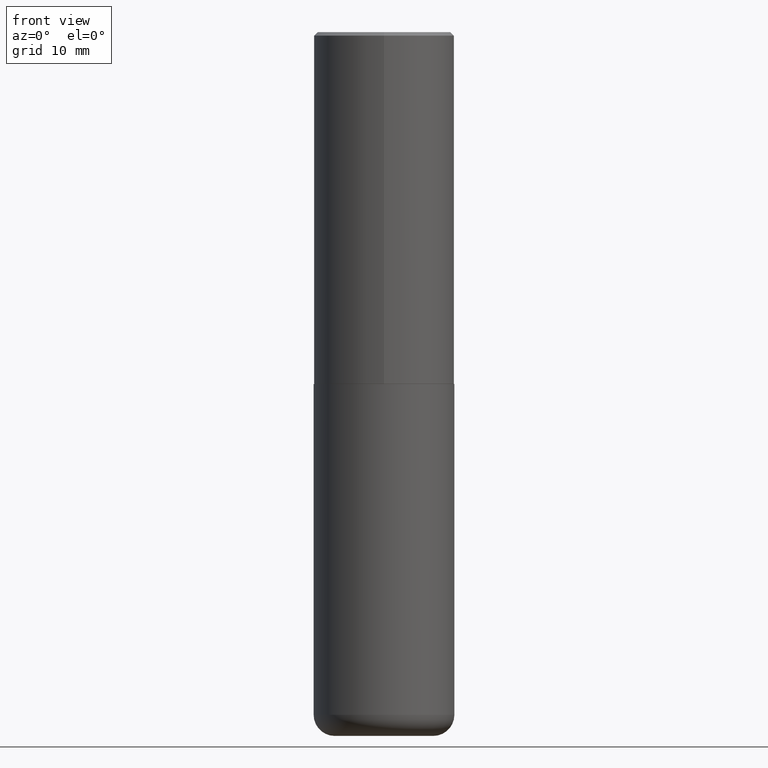
[diagram: clean part render]
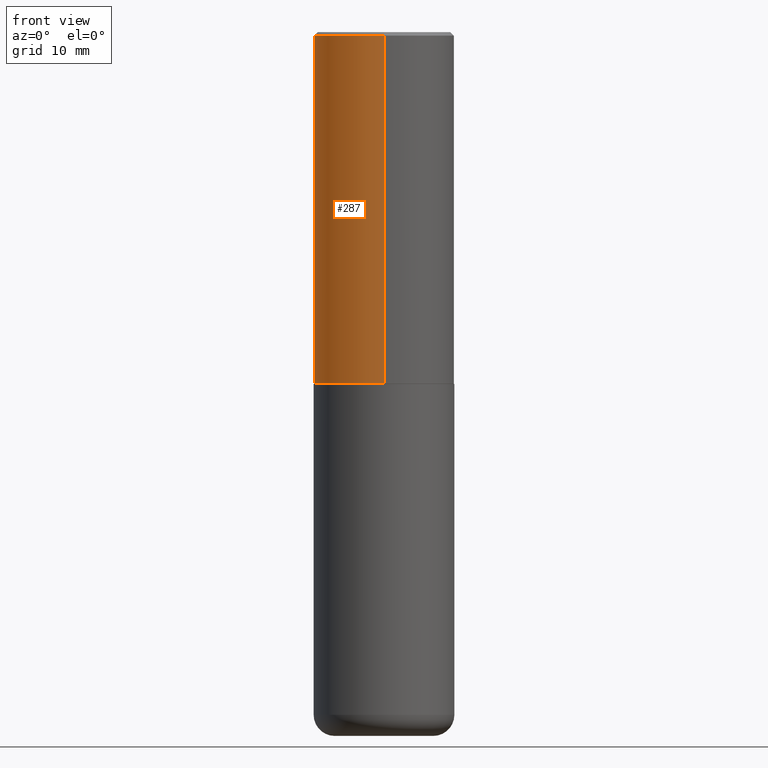
[diagram: same view with one face highlighted and labeled with its STEP entity id]
A machine part, front view. The second image highlights one B-rep face of the part: STEP entity #287.
In plain terms, the highlighted cylindrical surface (partial cylindrical patch) has radius 10 mm, axis along (-0, 0, 1).
Its self-contained STEP definition (entity closure, byte-faithful):
#7 = EDGE_CURVE ( 'NONE', #77, #97, #199, .T. ) ;
#15 = CARTESIAN_POINT ( 'NONE',  ( -2.700978061722651647E-15, -0.3937000000000001609, -0.01999999999999870978 ) ) ;
#29 = CARTESIAN_POINT ( 'NONE',  ( 4.816247846760815671E-29, -6.862632887772413316E-15, -1.967500000000000027 ) ) ;
#32 = CARTESIAN_POINT ( 'NONE',  ( 0.000000000000000000, 0.000000000000000000, 0.000000000000000000 ) ) ;
#45 = DIRECTION ( 'NONE',  ( -2.447902336346030930E-29, 3.487996385144809360E-15, 1.000000000000000000 ) ) ;
#46 = CARTESIAN_POINT ( 'NONE',  ( 4.895804672692082949E-31, -6.975992770289649092E-17, -0.02000000000000008715 ) ) ;
#54 = VECTOR ( 'NONE', #45, 39.37007874015748143 ) ;
#63 = EDGE_CURVE ( 'NONE', #103, #388, #198, .T. ) ;
#70 = CARTESIAN_POINT ( 'NONE',  ( 2.797406750687540424E-15, 0.3936999999999934441, -1.967500000000001359 ) ) ;
#77 = VERTEX_POINT ( 'NONE', #176 ) ;
#95 = VECTOR ( 'NONE', #98, 39.37007874015748143 ) ;
#97 = VERTEX_POINT ( 'NONE', #15 ) ;
#98 = DIRECTION ( 'NONE',  ( -2.447902336346030930E-29, 3.487996385144809360E-15, 1.000000000000000000 ) ) ;
#103 = VERTEX_POINT ( 'NONE', #70 ) ;
#135 = ORIENTED_EDGE ( 'NONE', *, *, #235, .T. ) ;
#152 = FACE_OUTER_BOUND ( 'NONE', #321, .T. ) ;
#162 = ORIENTED_EDGE ( 'NONE', *, *, #7, .T. ) ;
#165 = CIRCLE ( 'NONE', #351, 0.3937000000000001054 ) ;
#170 = ORIENTED_EDGE ( 'NONE', *, *, #398, .F. ) ;
#173 = CARTESIAN_POINT ( 'NONE',  ( 2.749192406205084005E-15, 0.3937000000000000499, -0.02000000000000146105 ) ) ;
#176 = CARTESIAN_POINT ( 'NONE',  ( -2.749192406205036674E-15, -0.3937000000000070998, -1.967499999999998694 ) ) ;
#191 = DIRECTION ( 'NONE',  ( -2.447902336346030930E-29, 3.487996385144809755E-15, 1.000000000000000000 ) ) ;
#198 = LINE ( 'NONE', #258, #95 ) ;
#199 = LINE ( 'NONE', #332, #54 ) ;
#235 = EDGE_CURVE ( 'NONE', #103, #77, #333, .T. ) ;
#251 = DIRECTION ( 'NONE',  ( -2.447902336346030930E-29, 3.487996385144809755E-15, 1.000000000000000000 ) ) ;
#258 = CARTESIAN_POINT ( 'NONE',  ( 2.797406750687515575E-15, 0.3937000000000002164, -1.373224176831512262E-15 ) ) ;
#266 = DIRECTION ( 'NONE',  ( -2.447902336346030930E-29, 3.487996385144809755E-15, 1.000000000000000000 ) ) ;
#283 = CYLINDRICAL_SURFACE ( 'NONE', #387, 0.3937000000000002164 ) ;
#287 = ADVANCED_FACE ( 'NONE', ( #152 ), #283, .T. ) ;
#288 = DIRECTION ( 'NONE',  ( -6.982962677686265922E-15, -1.000000000000000000, 3.487996385144809360E-15 ) ) ;
#299 = AXIS2_PLACEMENT_3D ( 'NONE', #29, #191, #349 ) ;
#321 = EDGE_LOOP ( 'NONE', ( #363, #135, #162, #170 ) ) ;
#332 = CARTESIAN_POINT ( 'NONE',  ( -2.749192406205084400E-15, -0.3937000000000002164, 1.373224176831512262E-15 ) ) ;
#333 = CIRCLE ( 'NONE', #299, 0.3937000000000002720 ) ;
#349 = DIRECTION ( 'NONE',  ( -6.982962677686265922E-15, -1.000000000000000000, 3.469453890861393601E-15 ) ) ;
#351 = AXIS2_PLACEMENT_3D ( 'NONE', #46, #266, #373 ) ;
#363 = ORIENTED_EDGE ( 'NONE', *, *, #63, .F. ) ;
#373 = DIRECTION ( 'NONE',  ( -6.982962677686265133E-15, -1.000000000000000000, 3.491137977679279029E-15 ) ) ;
#387 = AXIS2_PLACEMENT_3D ( 'NONE', #32, #251, #288 ) ;
#388 = VERTEX_POINT ( 'NONE', #173 ) ;
#398 = EDGE_CURVE ( 'NONE', #388, #97, #165, .T. ) ;